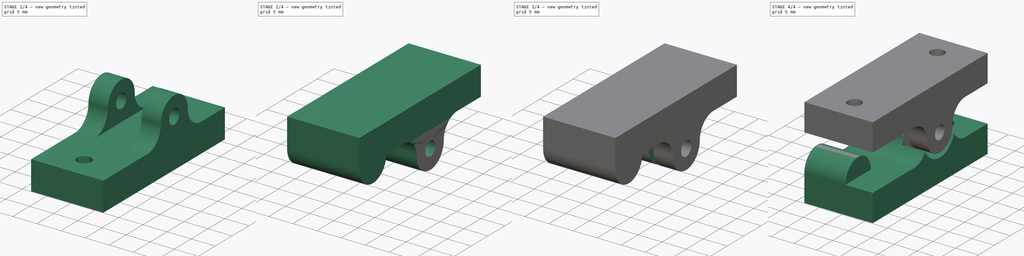
[diagram: build sequence overview — one tinted view per stage of 4, left to right]
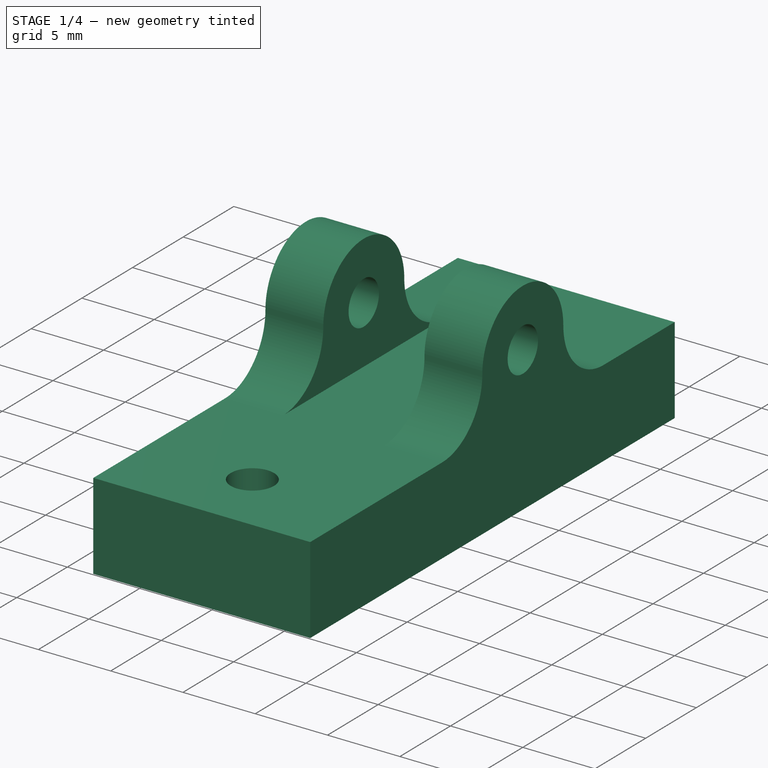
[diagram: stage 1 of 4 — iso view after this stage's code; geometry added in this stage tinted green]
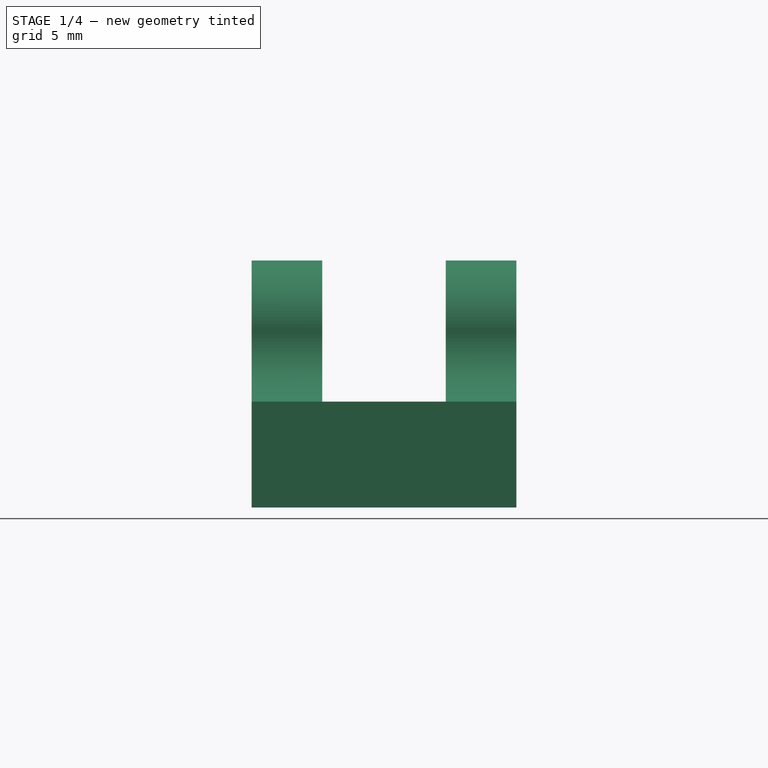
[diagram: stage 1 of 4 — front view after this stage's code; geometry added in this stage tinted green]
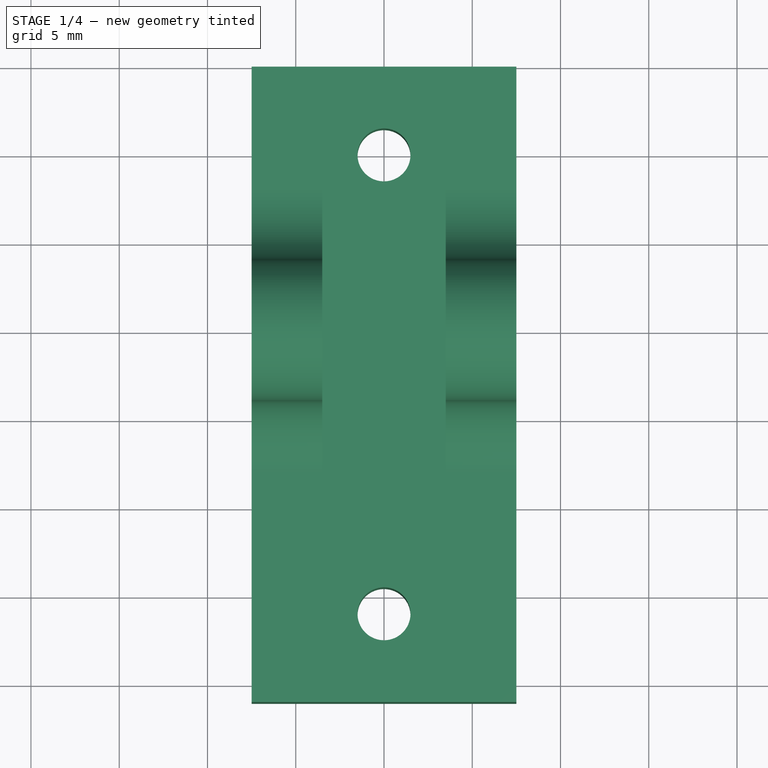
[diagram: stage 1 of 4 — top view after this stage's code; geometry added in this stage tinted green]
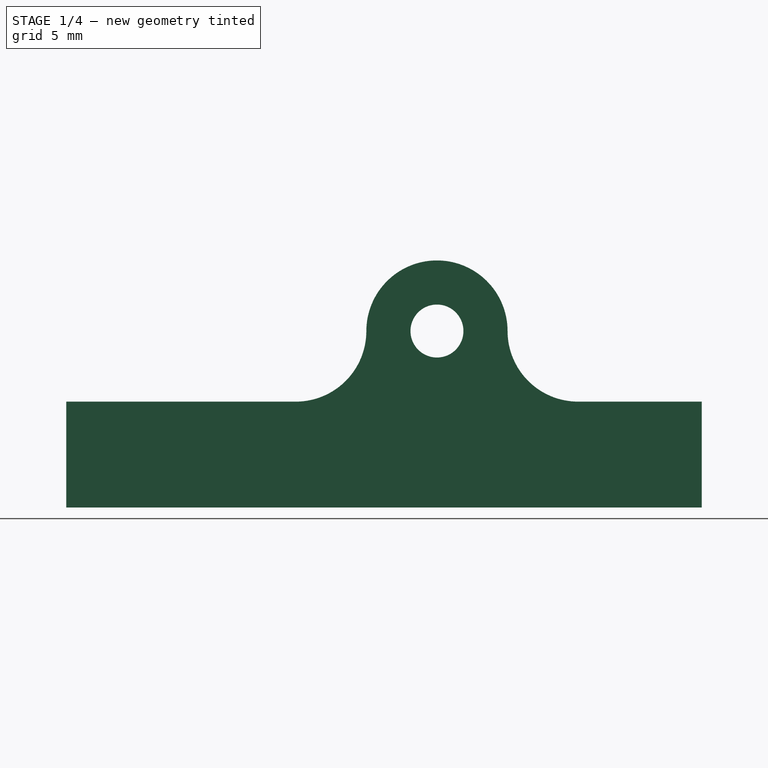
[diagram: stage 1 of 4 — right view after this stage's code; geometry added in this stage tinted green]
FCSTD DOCUMENT  (FreeCAD 1.0R39319 (Git))
Label: SnapLock
License: All rights reserved
LicenseURL: https://en.wikipedia.org/wiki/All_rights_reserved
objects: Sketcher::SketchObject×8, PartDesign::Pocket×6, PartDesign::Pad×2, PartDesign::Body×2, App::LinkGroup×2, Part::Mirroring×2, PartDesign::Mirrored×1
note: 46 computed .brp shape members not serialized (recipe doc carries the construction recipe); baked Part::Feature solids carry a one-line shape summary decoded from their .brp

FEATURE [Sketcher::SketchObject] Sketch007
  ArcFitTolerance = 1e-06
  AttachmentSupport = -> [YZ_Plane002]
  FullyConstrained = true
  MakeInternals = false
  MapMode = 5
  Placement = pos=(0,0,0) rot=(0.57735,0.57735,0.57735;2.0944rad)
  sketch-geometry (9):
    g0: ArcOfCircle CenterX=0 CenterY=0 CenterZ=0 NormalX=0 NormalY=0 NormalZ=1 AngleXU=0 Radius=4 StartAngle=0 EndAngle=3.14159
    g1: ArcOfCircle CenterX=-8 CenterY=0 CenterZ=0 NormalX=0 NormalY=0 NormalZ=1 AngleXU=0 Radius=4 StartAngle=4.71239 EndAngle=6.28319
    g2: ArcOfCircle CenterX=8 CenterY=0 CenterZ=0 NormalX=0 NormalY=0 NormalZ=1 AngleXU=0 Radius=4 StartAngle=3.14159 EndAngle=4.71239
    g3: LineSegment StartX=8 StartY=-4 StartZ=0 EndX=15 EndY=-4 EndZ=0
    g4: LineSegment StartX=15 StartY=-4 StartZ=0 EndX=15 EndY=-10 EndZ=0
    g5: LineSegment StartX=15 StartY=-10 StartZ=0 EndX=-21 EndY=-10 EndZ=0
    g6: LineSegment StartX=-21 StartY=-10 StartZ=0 EndX=-21 EndY=-4 EndZ=0
    g7: LineSegment StartX=-21 StartY=-4 StartZ=0 EndX=-8 EndY=-4 EndZ=0
    g8: Circle CenterX=0 CenterY=0 CenterZ=0 NormalX=0 NormalY=0 NormalZ=1 AngleXU=0 Radius=1.5
  constraints (27):
    c: Radius(g0) = 4
    c: Coincident(g0,g-1)
    c: PointOnObject(g0,g-1)
    c: PointOnObject(g0,g-1)
    c: PointOnObject(g1,g-1)
    c: Coincident(g1,g0)
    c: Radius(g1) = 4
    c: PointOnObject(g2,g-1)
    c: Coincident(g2,g0)
    c: Radius(g2) = 4
    c: Tangent(g2,g3) = -1.5708
    c: Coincident(g3,g4)
    c: Vertical(g4)
    c: Coincident(g4,g5)
    c: Horizontal(g5)
    c: Coincident(g5,g6)
    c: Vertical(g6)
    c: Coincident(g6,g7)
    c: Coincident(g7,g1)
    c: Horizontal(g7)
    c: Diameter(g8) = 3
    c: Coincident(g8,g0)
    c: Vertical(g1,g1)
    c: Vertical(g2,g2)
    c: Distance(g-1,g5) = 10
    c: Distance(g-2,g6) = 21
    c: Distance(g-2,g4) = 15
FEATURE [PartDesign::Pad] Pad002
  Direction = (1,0,0)
  Length = 15
  Length2 = 10
  Midplane = true
  Placement = pos=(0,0,0) rot=(1,1,1;2.0944rad)
  Profile = -> Sketch007
  ReferenceAxis = -> Sketch007 [N_Axis]
  Refine = true
  Suppressed = false
  Type = 0
FEATURE [Sketcher::SketchObject] Sketch008
  ArcFitTolerance = 1e-06
  AttachmentSupport = -> [Pad002]
  ExternalGeometry = -> [Pad002]
  FullyConstrained = false
  MakeInternals = false
  MapMode = 5
  Placement = pos=(-4.7e-15,-21,2.3e-15) rot=(0.57735,0.57735,-0.57735;2.0944rad)
  sketch-geometry (4):
    g0: LineSegment StartX=-13.8912 StartY=3.5 StartZ=0 EndX=-13.8912 EndY=-3.5 EndZ=0
    g1: LineSegment StartX=-13.8912 StartY=-3.5 StartZ=0 EndX=4 EndY=-3.5 EndZ=0
    g2: LineSegment StartX=4 StartY=-3.5 StartZ=0 EndX=4 EndY=3.5 EndZ=0
    g3: LineSegment StartX=4 StartY=3.5 StartZ=0 EndX=-13.8912 EndY=3.5 EndZ=0
  constraints (11):
    c: Coincident(g0,g1)
    c: Coincident(g1,g2)
    c: Coincident(g2,g3)
    c: Coincident(g3,g0)
    c: Vertical(g0)
    c: Vertical(g2)
    c: Horizontal(g1)
    c: Horizontal(g3)
    c: Vertical(g2,g-4)
    c: Distance(g3,g-4) = 4
    c: Distance(g-3,g1) = 4
FEATURE [PartDesign::Pocket] Pocket005
  BaseFeature = -> Pad002
  Direction = (0,1,0)
  Length = 5
  Length2 = 5
  Placement = pos=(0,0,0) rot=(1,1,1;2.0944rad)
  Profile = -> Sketch008
  ReferenceAxis = -> Sketch008 [N_Axis]
  Refine = true
  Suppressed = false
  Type = 1
FEATURE [Sketcher::SketchObject] Sketch009
  ArcFitTolerance = 1e-06
  AttachmentSupport = -> [Pocket005]
  FullyConstrained = true
  MakeInternals = false
  MapMode = 5
  Placement = pos=(4e-16,-2.5e-15,-4) rot=(0,0,-1;1.5708rad)
  sketch-geometry (2):
    g0: Circle CenterX=16 CenterY=0 CenterZ=0 NormalX=0 NormalY=0 NormalZ=1 AngleXU=0 Radius=1.5
    g1: Circle CenterX=-10 CenterY=0 CenterZ=0 NormalX=0 NormalY=0 NormalZ=1 AngleXU=0 Radius=1.5
  constraints (6):
    c: Diameter(g0) = 3
    c: PointOnObject(g0,g-1)
    c: Diameter(g1) = 3
    c: PointOnObject(g1,g-1)
    c: DistanceX(g1,g-1) = 10
    c: DistanceX(g-1,g0) = 16
FEATURE [PartDesign::Pocket] Pocket006
  BaseFeature = -> Pocket005
  Direction = (0,0,-1)
  Length = 5
  Length2 = 5
  Placement = pos=(0,0,0) rot=(1,1,1;2.0944rad)
  Profile = -> Sketch009
  ReferenceAxis = -> Sketch009 [N_Axis]
  Refine = true
  Suppressed = false
  Type = 1
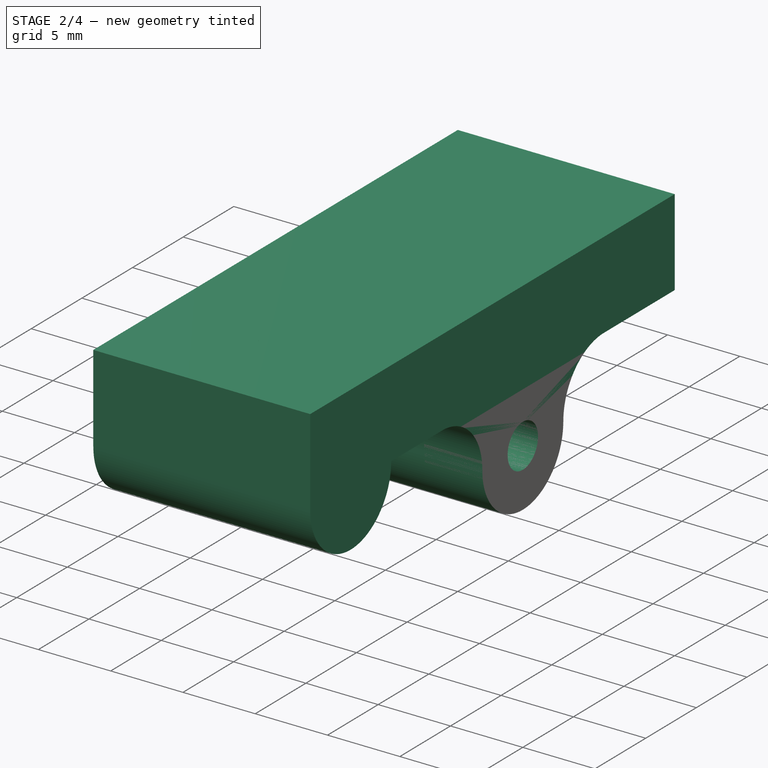
[diagram: stage 2 of 4 — iso view after this stage's code; geometry added in this stage tinted green]
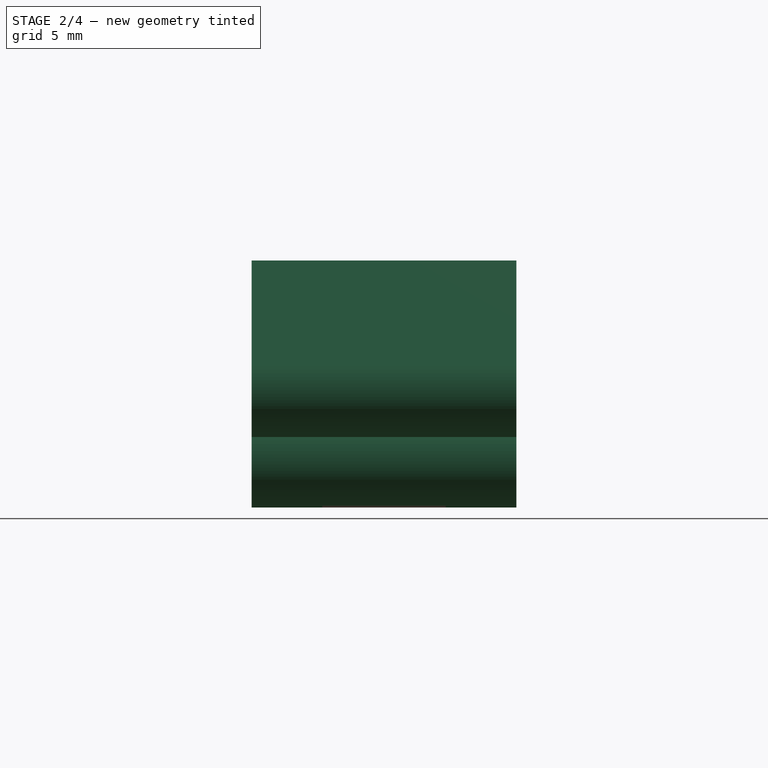
[diagram: stage 2 of 4 — front view after this stage's code; geometry added in this stage tinted green]
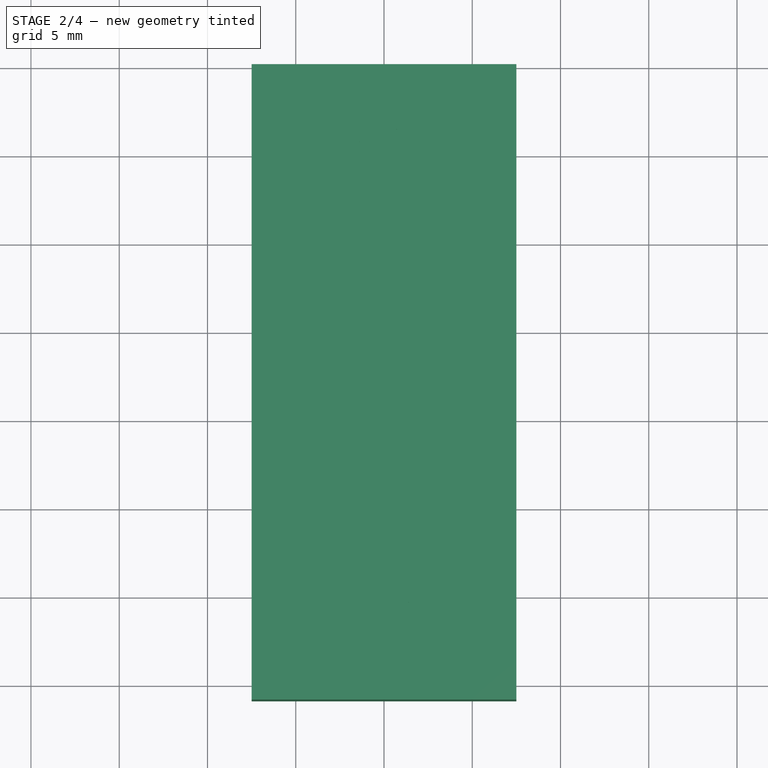
[diagram: stage 2 of 4 — top view after this stage's code; geometry added in this stage tinted green]
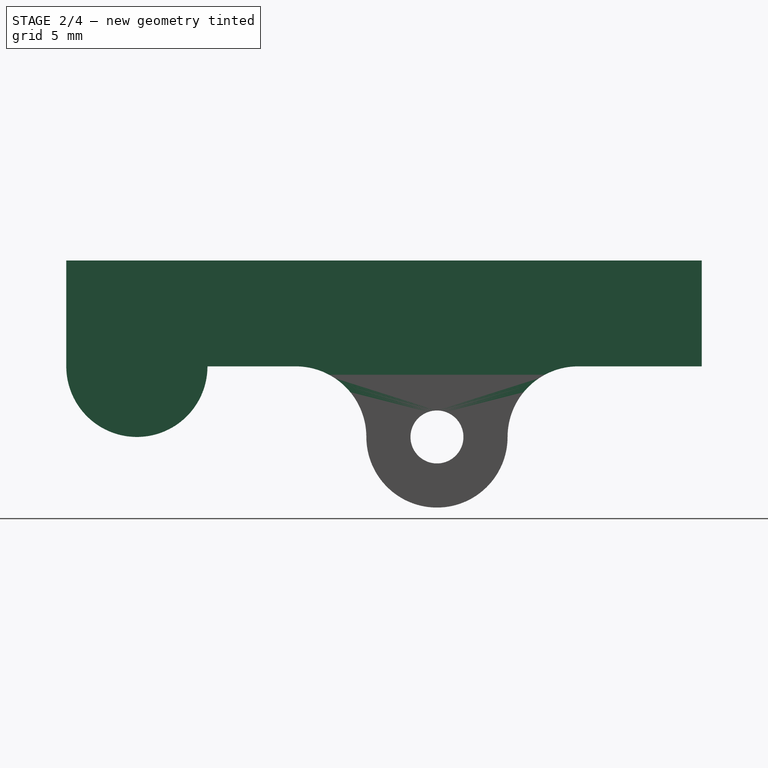
[diagram: stage 2 of 4 — right view after this stage's code; geometry added in this stage tinted green]
FEATURE [Sketcher::SketchObject] Sketch010
  ArcFitTolerance = 1e-06
  AttachmentSupport = -> [Pocket006]
  ExternalGeometry = -> [Pocket006]
  FullyConstrained = true
  MakeInternals = false
  MapMode = 5
  Placement = pos=(1.8e-15,-2.9e-15,-4) rot=(0,0,-1;1.5708rad)
  sketch-geometry (2):
    g0: Circle CenterX=-10 CenterY=0 CenterZ=0 NormalX=0 NormalY=0 NormalZ=1 AngleXU=0 Radius=3
    g1: Circle CenterX=16 CenterY=0 CenterZ=0 NormalX=0 NormalY=0 NormalZ=1 AngleXU=0 Radius=3
  constraints (4):
    c: Diameter(g0) = 6
    c: Coincident(g0,g-3)
    c: Diameter(g1) = 6
    c: Coincident(g1,g-4)
FEATURE [PartDesign::Pocket] Pocket007
  BaseFeature = -> Pocket006
  Direction = (0,0,-1)
  Length = 3
  Length2 = 5
  Placement = pos=(0,0,0) rot=(1,1,1;2.0944rad)
  Profile = -> Sketch010
  ReferenceAxis = -> Sketch010 [N_Axis]
  Refine = true
  Suppressed = false
  Type = 0
FEATURE [PartDesign::Body] Body002  label="Bottom001"
  AllowCompound = false
  Group = -> [Sketch007,Pad002,Sketch008,Pocket005,Sketch009,Pocket006,Sketch010,Pocket007]
  Origin = -> Origin002
  Tip = -> Pocket007
FEATURE [Sketcher::SketchObject] Sketch011
  ArcFitTolerance = 1e-06
  AttachmentSupport = -> [YZ_Plane003]
  FullyConstrained = true
  MakeInternals = false
  MapMode = 5
  Placement = pos=(0,0,0) rot=(0.57735,0.57735,0.57735;2.0944rad)
  sketch-geometry (10):
    g0: ArcOfCircle CenterX=0 CenterY=0 CenterZ=0 NormalX=0 NormalY=0 NormalZ=1 AngleXU=0 Radius=4 StartAngle=3.14159 EndAngle=6.28319
    g1: ArcOfCircle CenterX=8 CenterY=0 CenterZ=0 NormalX=0 NormalY=0 NormalZ=1 AngleXU=0 Radius=4 StartAngle=1.5708 EndAngle=3.14159
    g2: ArcOfCircle CenterX=-8 CenterY=0 CenterZ=0 NormalX=0 NormalY=0 NormalZ=1 AngleXU=0 Radius=4 StartAngle=0 EndAngle=1.5708
    g3: LineSegment StartX=8 StartY=4 StartZ=0 EndX=15 EndY=4 EndZ=0
    g4: LineSegment StartX=15 StartY=4 StartZ=0 EndX=15 EndY=10 EndZ=0
    g5: LineSegment StartX=15 StartY=10 StartZ=0 EndX=-21 EndY=10 EndZ=0
    g6: LineSegment StartX=-21 StartY=10 StartZ=0 EndX=-21 EndY=4 EndZ=0
    g7: LineSegment StartX=-13 StartY=4 StartZ=0 EndX=-8 EndY=4 EndZ=0
    g8: Circle CenterX=0 CenterY=0 CenterZ=0 NormalX=0 NormalY=0 NormalZ=1 AngleXU=0 Radius=1.5
    g9: ArcOfCircle CenterX=-17 CenterY=4 CenterZ=0 NormalX=0 NormalY=0 NormalZ=1 AngleXU=0 Radius=4 StartAngle=3.14159 EndAngle=6.28319
  constraints (31):
    c: Radius(g0) = 4
    c: Coincident(g0,g-1)
    c: PointOnObject(g0,g-1)
    c: PointOnObject(g0,g-1)
    c: Angle(g1) = 1.5708
    c: PointOnObject(g1,g-1)
    c: Coincident(g1,g0)
    c: Radius(g1) = 4
    c: Angle(g2) = 1.5708
    c: PointOnObject(g2,g-1)
    c: Coincident(g2,g0)
    c: Radius(g2) = 4
    c: Tangent(g1,g3) = 1.5708
    c: Coincident(g3,g4)
    c: Vertical(g4)
    c: Coincident(g4,g5)
    c: Horizontal(g5)
    c: Coincident(g5,g6)
    c: Vertical(g6)
    c: Coincident(g7,g2)
    c: Horizontal(g7)
    c: Horizontal(g7,g6)
    c: DistanceX(g7,g7) = 5
    c: DistanceY(g4,g4) = 6
    c: Diameter(g8) = 3
    c: Coincident(g8,g0)
    c: Distance(g-2,g4) = 15
    c: Coincident(g9,g7)
    c: Coincident(g9,g6)
    c: Radius(g9) = 4
    c: Symmetric(g7,g6,g9)
FEATURE [PartDesign::Pad] Pad003
  Direction = (1,0,0)
  Length = 15
  Length2 = 10
  Midplane = true
  Placement = pos=(0,0,0) rot=(1,1,1;2.0944rad)
  Profile = -> Sketch011
  ReferenceAxis = -> Sketch011 [N_Axis]
  Refine = true
  Suppressed = false
  Type = 0
FEATURE [Part::Mirroring] Part__Mirroring001  label="Bottom001 (Mirror #2)"
  Base = (0,0,0)
  Normal = (0,0,1)
  Source = -> Body002
FEATURE [App::LinkGroup] LinkGroup001  label="LatchesLockRight"
  ElementList = -> [Part__Mirroring001,Part__Mirroring]
  LinkMode = 0
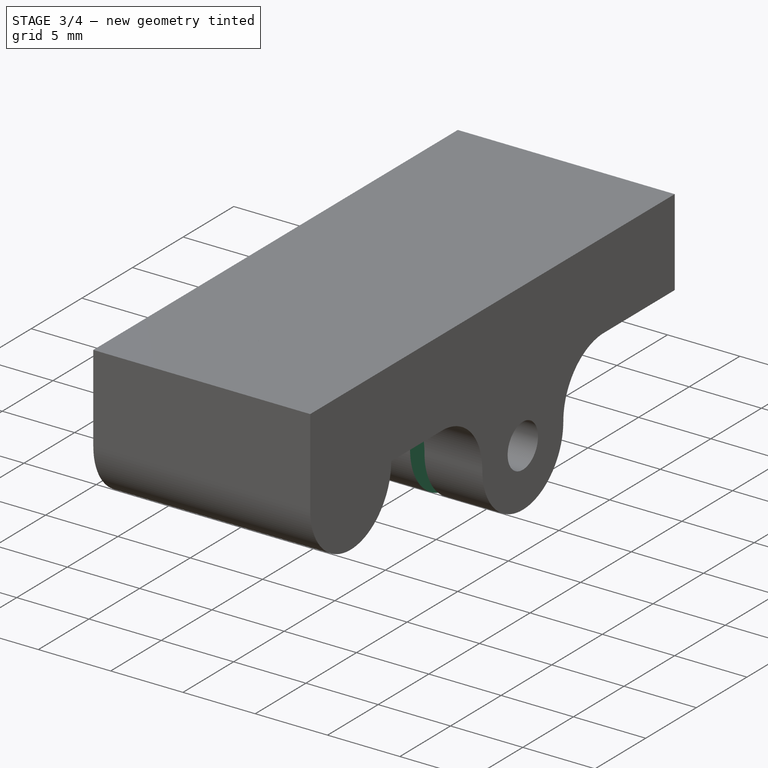
[diagram: stage 3 of 4 — iso view after this stage's code; geometry added in this stage tinted green]
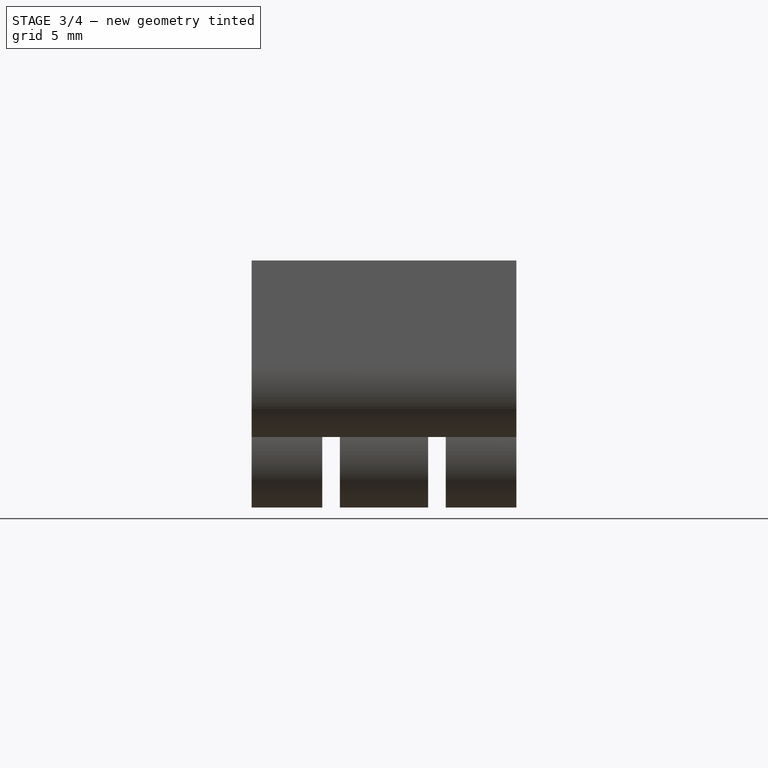
[diagram: stage 3 of 4 — front view after this stage's code; geometry added in this stage tinted green]
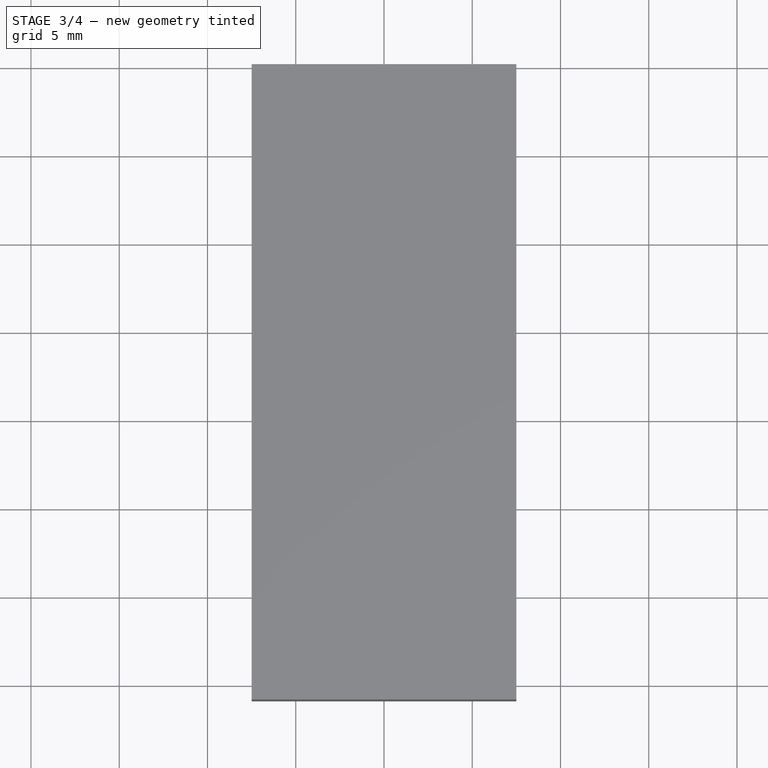
[diagram: stage 3 of 4 — top view after this stage's code; geometry added in this stage tinted green]
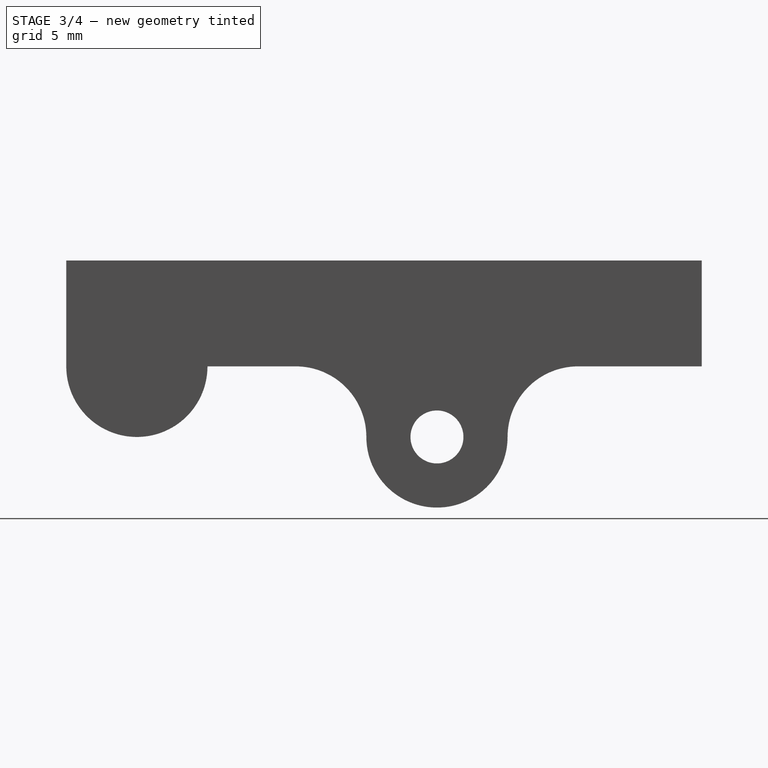
[diagram: stage 3 of 4 — right view after this stage's code; geometry added in this stage tinted green]
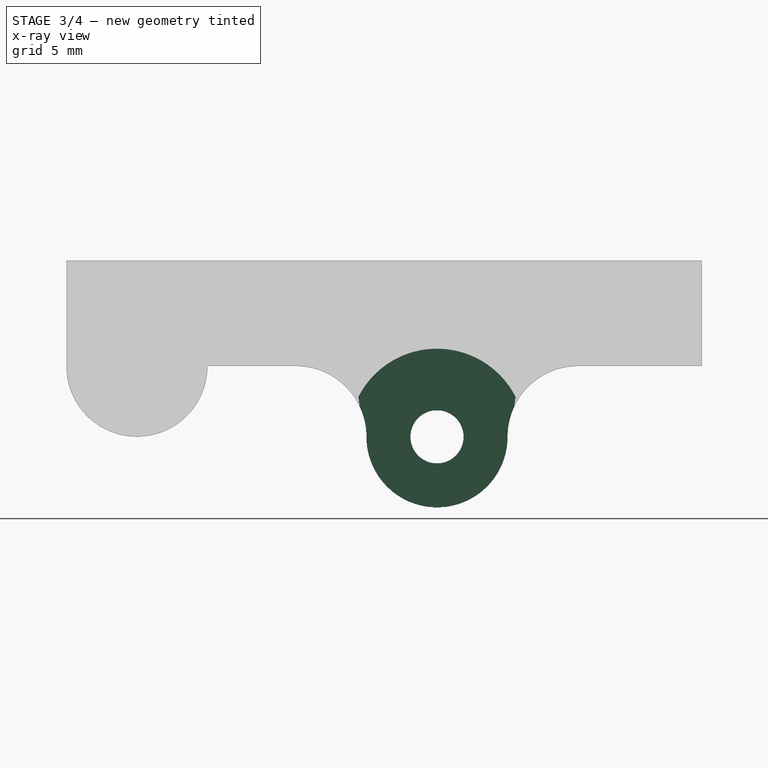
[diagram: stage 3 of 4 — x-ray composite at the right view; earlier geometry ghosted, this stage's added geometry solid]
FEATURE [Sketcher::SketchObject] Sketch012
  ArcFitTolerance = 1e-06
  AttachmentSupport = -> [Pad003]
  FullyConstrained = true
  MakeInternals = false
  MapMode = 5
  Placement = pos=(7.5,-1.7e-15,8e-16) rot=(0.57735,0.57735,0.57735;2.0944rad)
  sketch-geometry (1):
    g0: Circle CenterX=0 CenterY=0 CenterZ=0 NormalX=0 NormalY=0 NormalZ=1 AngleXU=0 Radius=5
  constraints (2):
    c: Diameter(g0) = 10
    c: Coincident(g0,g-1)
FEATURE [PartDesign::Pocket] Pocket008
  BaseFeature = -> Pad003
  Direction = (-1,0,0)
  Length = 5
  Length2 = 5
  Placement = pos=(0,0,0) rot=(1,1,1;2.0944rad)
  Profile = -> Sketch012
  ReferenceAxis = -> Sketch012 [N_Axis]
  Refine = true
  Suppressed = false
  Type = 0
FEATURE [PartDesign::Mirrored] Mirrored001
  BaseFeature = -> Pocket008
  MirrorPlane = -> YZ_Plane003
  Originals = -> [Pocket008]
  Placement = pos=(0,0,0) rot=(1,1,1;2.0944rad)
  Refine = true
  Suppressed = false
  TransformMode = 0
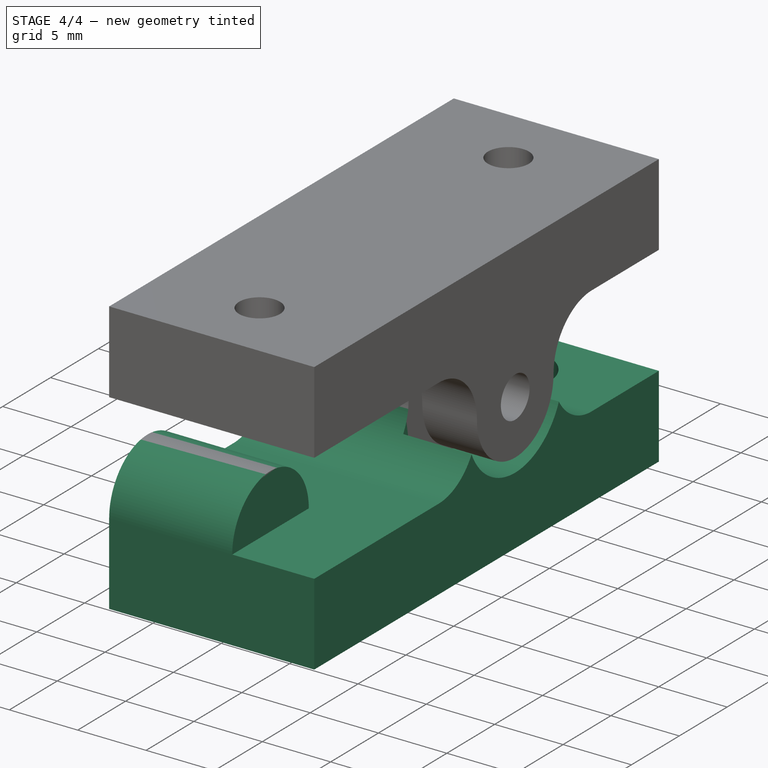
[diagram: stage 4 of 4 — iso view after this stage's code; geometry added in this stage tinted green]
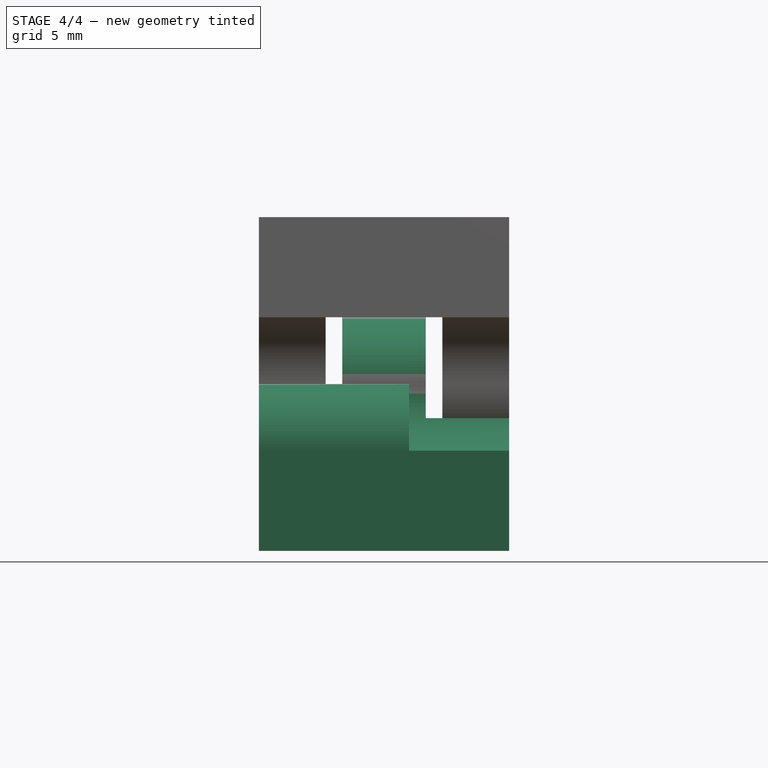
[diagram: stage 4 of 4 — front view after this stage's code; geometry added in this stage tinted green]
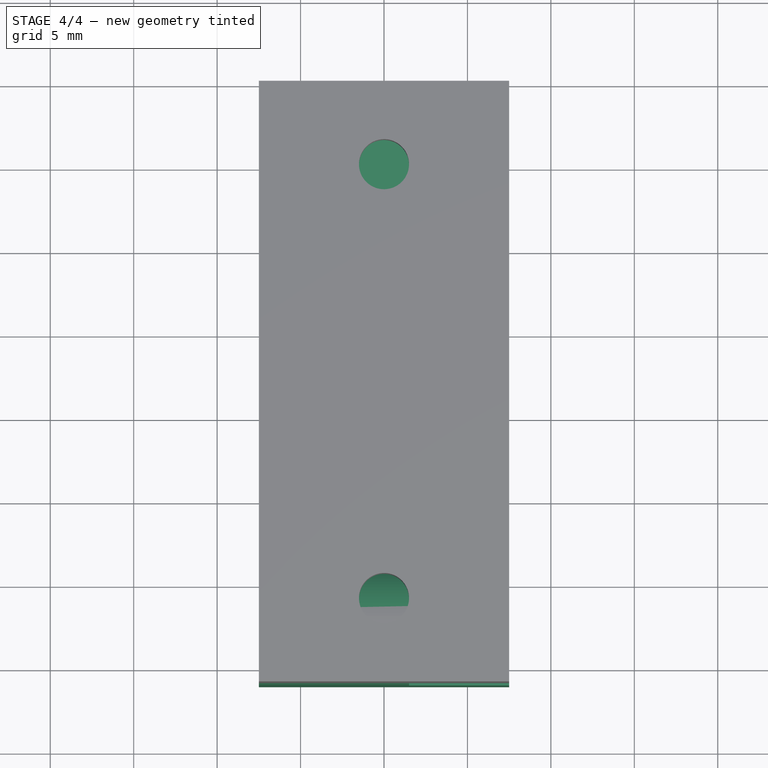
[diagram: stage 4 of 4 — top view after this stage's code; geometry added in this stage tinted green]
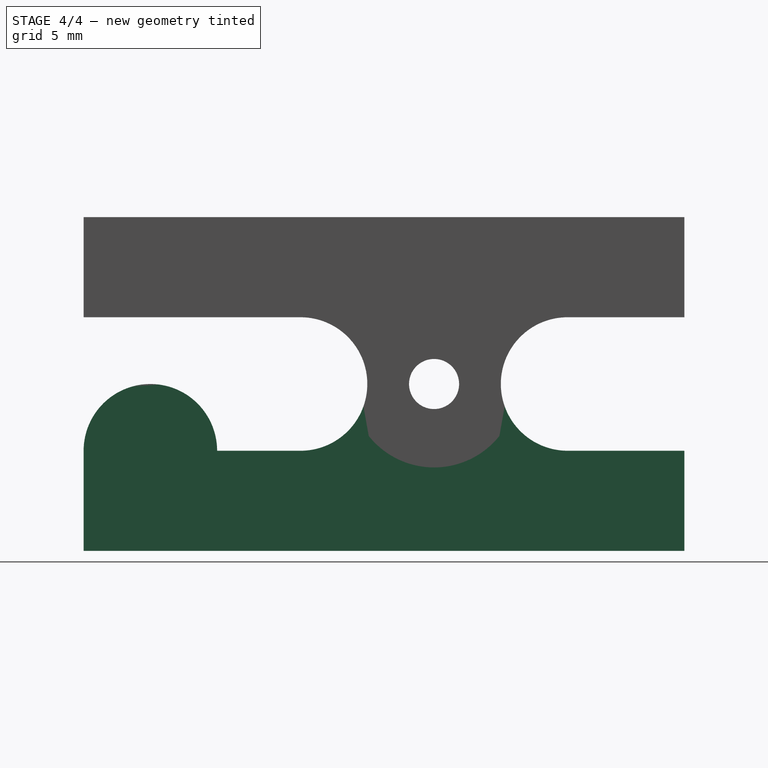
[diagram: stage 4 of 4 — right view after this stage's code; geometry added in this stage tinted green]
FEATURE [Sketcher::SketchObject] Sketch013
  ArcFitTolerance = 1e-06
  AttachmentSupport = -> [XY_Plane003]
  FullyConstrained = true
  MakeInternals = false
  MapMode = 5
  sketch-geometry (1):
    g0: Circle CenterX=0 CenterY=10 CenterZ=0 NormalX=0 NormalY=0 NormalZ=1 AngleXU=0 Radius=3
  constraints (3):
    c: Diameter(g0) = 6
    c: PointOnObject(g0,g-2)
    c: DistanceY(g-1,g0) = 10
FEATURE [PartDesign::Pocket] Pocket009
  BaseFeature = -> Mirrored001
  Direction = (0,0,-1)
  Length = 7
  Length2 = 5
  Placement = pos=(0,0,0) rot=(1,1,1;2.0944rad)
  Profile = -> Sketch013
  ReferenceAxis = -> Sketch013 [N_Axis]
  Refine = true
  Reversed = true
  Suppressed = false
  Type = 0
FEATURE [Sketcher::SketchObject] Sketch014
  ArcFitTolerance = 1e-06
  AttachmentSupport = -> [Pocket009]
  ExternalGeometry = -> [Pocket009]
  FullyConstrained = false
  MakeInternals = false
  MapMode = 5
  Placement = pos=(7.5,-5e-15,2.5e-15) rot=(0.57735,0.57735,0.57735;2.0944rad)
  sketch-geometry (4):
    g0: LineSegment StartX=-21 StartY=4 StartZ=0 EndX=-21 EndY=-1.99999 EndZ=0
    g1: LineSegment StartX=-21 StartY=-1.99999 StartZ=0 EndX=-13 EndY=-1.99999 EndZ=0
    g2: LineSegment StartX=-13 StartY=4 StartZ=0 EndX=-21 EndY=4 EndZ=0
    g3: LineSegment StartX=-13 StartY=4 StartZ=0 EndX=-13 EndY=-1.99999 EndZ=0
  constraints (10):
    c: Coincident(g0,g1)
    c: Coincident(g2,g0)
    c: Vertical(g0)
    c: Horizontal(g1)
    c: Horizontal(g2)
    c: Coincident(g3,g2)
    c: Coincident(g3,g1)
    c: Vertical(g3)
    c: Coincident(g0,g-3)
    c: DistanceX(g2,g2) = 8
FEATURE [PartDesign::Pocket] Pocket010
  BaseFeature = -> Pocket009
  Direction = (-1,0,0)
  Length = 6
  Length2 = 5
  Placement = pos=(0,0,0) rot=(1,1,1;2.0944rad)
  Profile = -> Sketch014
  ReferenceAxis = -> Sketch014 [N_Axis]
  Refine = true
  Suppressed = false
  Type = 0
FEATURE [PartDesign::Body] Body003  label="Top001"
  AllowCompound = false
  Group = -> [Sketch011,Pad003,Sketch012,Pocket008,Mirrored001,Sketch013,Pocket009,Sketch014,Pocket010]
  Origin = -> Origin003
  Tip = -> Pocket010
FEATURE [App::LinkGroup] LinkGroup  label="LatchesLockLeft"
  ElementList = -> [Body002,Body003]
  LinkMode = 0
  Placement = pos=(0,-2.6226e-06,24.2) rot=(0,0,1;0rad)
FEATURE [Part::Mirroring] Part__Mirroring  label="Top001 (Mirror #1)"
  Base = (0,0,0)
  Normal = (0,0,1)
  Source = -> Body003
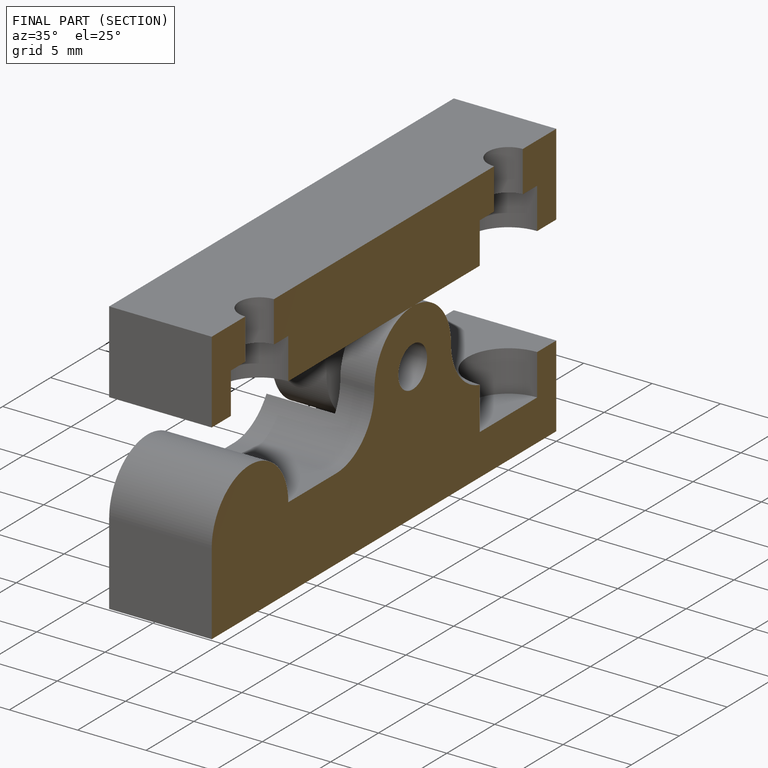
[diagram: finished part — half-section view (interior)]
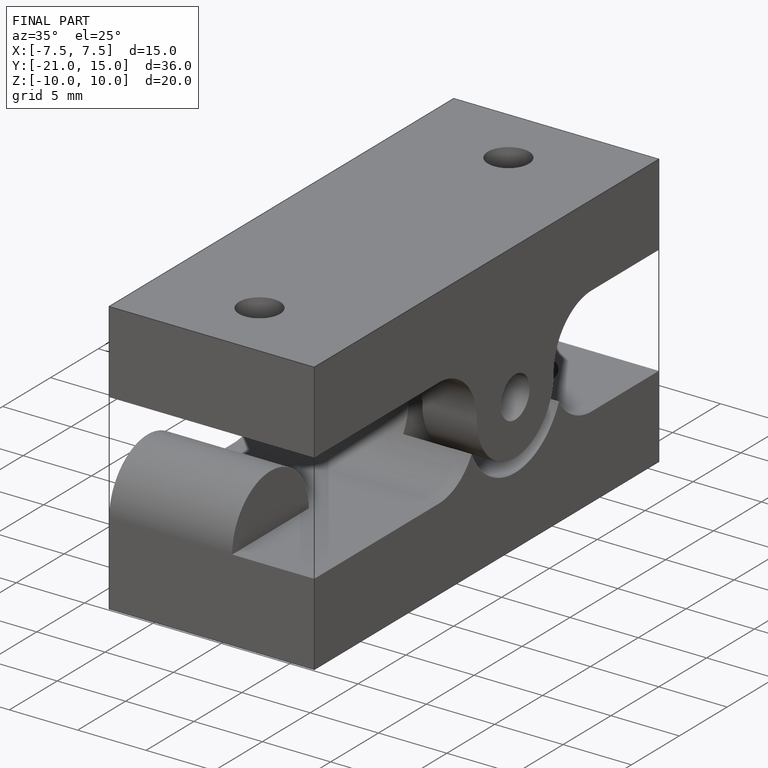
[diagram: finished part — iso view with bounding-box wireframe]
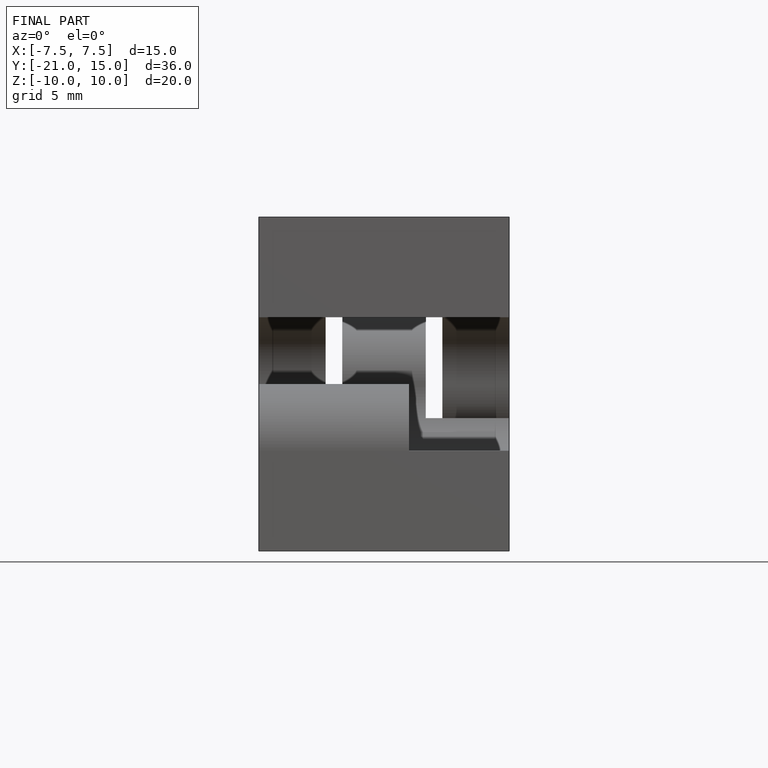
[diagram: finished part — front view with bounding-box wireframe]
